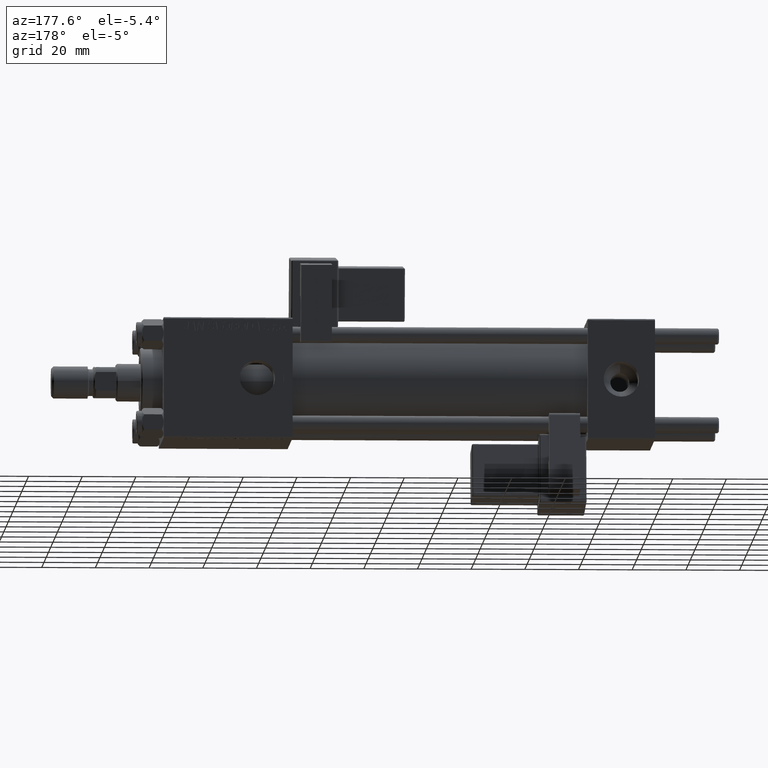
[diagram: clean part render]
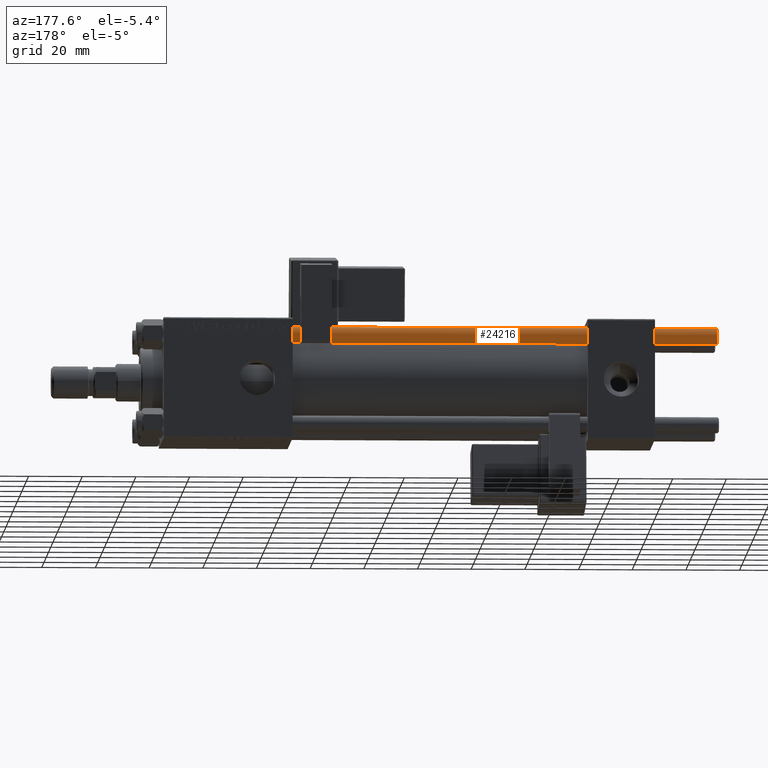
[diagram: same view with one face highlighted and labeled with its STEP entity id]
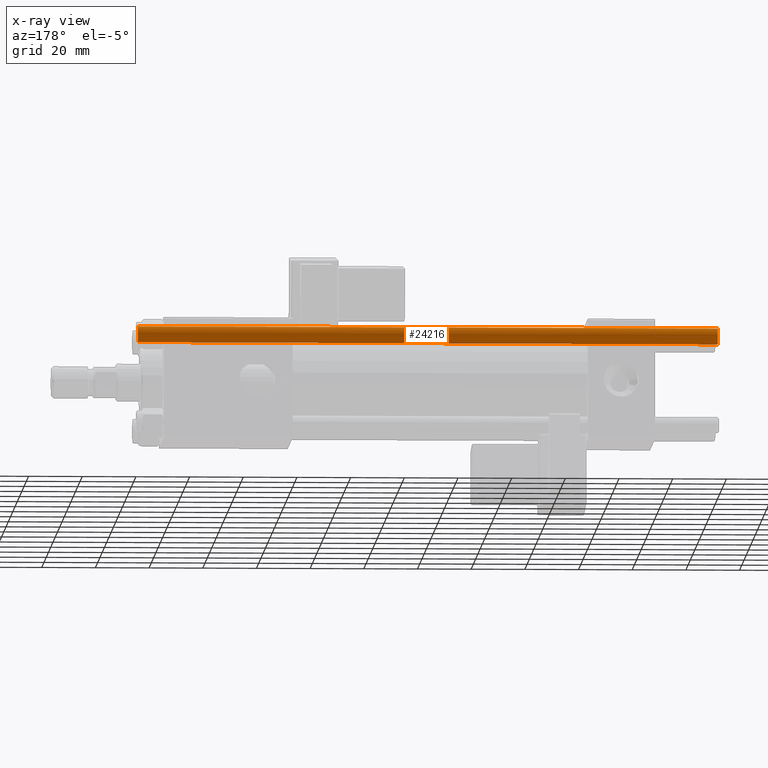
[diagram: x-ray of the same camera — body ghosted, the highlighted face saturated]
A machine part, auxiliary view. The second image highlights one B-rep face of the part: STEP entity #24216.
The next image is the same camera in x-ray: the body ghosted, the highlighted face saturated — about 0% of this face is hidden behind the body in this view.
In plain terms, the highlighted cylindrical surface (edge-blend (fillet) strip) has radius 3 mm, axis along (-1, -0, -0).
Its self-contained STEP definition (entity closure, byte-faithful):
#2593 = AXIS2_PLACEMENT_3D ( 'NONE', #15445, #52775, #36560 ) ;
#3257 = LINE ( 'NONE', #39738, #4532 ) ;
#4138 = ORIENTED_EDGE ( 'NONE', *, *, #19856, .T. ) ;
#4329 = CARTESIAN_POINT ( 'NONE',  ( -3.000000000000000444, 0.000000000000000000, 0.5000000000000559552 ) ) ;
#4532 = VECTOR ( 'NONE', #18889, 1000.000000000000000 ) ;
#5206 = CIRCLE ( 'NONE', #2593, 3.000000000000000444 ) ;
#8696 = CARTESIAN_POINT ( 'NONE',  ( -3.000000000000000444, 0.000000000000000000, 217.0000000000000000 ) ) ;
#11612 = CARTESIAN_POINT ( 'NONE',  ( 3.000000000000000444, 3.673940397442060361E-16, 216.5000000000000000 ) ) ;
#12045 = VECTOR ( 'NONE', #38301, 1000.000000000000000 ) ;
#13312 = VERTEX_POINT ( 'NONE', #4329 ) ;
#15445 = CARTESIAN_POINT ( 'NONE',  ( 0.000000000000000000, 0.000000000000000000, 216.5000000000000000 ) ) ;
#15448 = DIRECTION ( 'NONE',  ( 1.000000000000000000, 0.000000000000000000, 0.000000000000000000 ) ) ;
#16420 = FACE_OUTER_BOUND ( 'NONE', #43126, .T. ) ;
#16686 = DIRECTION ( 'NONE',  ( -0.000000000000000000, -0.000000000000000000, -1.000000000000000000 ) ) ;
#16958 = ORIENTED_EDGE ( 'NONE', *, *, #52588, .T. ) ;
#18889 = DIRECTION ( 'NONE',  ( -0.000000000000000000, -0.000000000000000000, -1.000000000000000000 ) ) ;
#19856 = EDGE_CURVE ( 'NONE', #26679, #26513, #5206, .T. ) ;
#21575 = LINE ( 'NONE', #8696, #12045 ) ;
#24216 = ADVANCED_FACE ( 'NONE', ( #16420 ), #38067, .T. ) ;
#26513 = VERTEX_POINT ( 'NONE', #11612 ) ;
#26679 = VERTEX_POINT ( 'NONE', #40073 ) ;
#28119 = AXIS2_PLACEMENT_3D ( 'NONE', #50437, #16686, #37802 ) ;
#28708 = EDGE_CURVE ( 'NONE', #26513, #35511, #3257, .T. ) ;
#33189 = CIRCLE ( 'NONE', #53374, 3.000000000000000444 ) ;
#35511 = VERTEX_POINT ( 'NONE', #43743 ) ;
#36560 = DIRECTION ( 'NONE',  ( 1.000000000000000000, 0.000000000000000000, 0.000000000000000000 ) ) ;
#37802 = DIRECTION ( 'NONE',  ( -1.000000000000000000, 0.000000000000000000, 0.000000000000000000 ) ) ;
#38067 = CYLINDRICAL_SURFACE ( 'NONE', #28119, 3.000000000000000444 ) ;
#38301 = DIRECTION ( 'NONE',  ( -0.000000000000000000, -0.000000000000000000, -1.000000000000000000 ) ) ;
#39738 = CARTESIAN_POINT ( 'NONE',  ( 3.000000000000000444, 3.673940397442060361E-16, 217.0000000000000000 ) ) ;
#40073 = CARTESIAN_POINT ( 'NONE',  ( -3.000000000000000444, 0.000000000000000000, 216.5000000000000000 ) ) ;
#40671 = CARTESIAN_POINT ( 'NONE',  ( 0.000000000000000000, 0.000000000000000000, 0.5000000000000559552 ) ) ;
#43126 = EDGE_LOOP ( 'NONE', ( #4138, #54096, #16958, #46201 ) ) ;
#43743 = CARTESIAN_POINT ( 'NONE',  ( 3.000000000000000444, 3.673940397442060361E-16, 0.5000000000000559552 ) ) ;
#46201 = ORIENTED_EDGE ( 'NONE', *, *, #49819, .F. ) ;
#48650 = DIRECTION ( 'NONE',  ( -0.000000000000000000, -0.000000000000000000, 1.000000000000000000 ) ) ;
#49819 = EDGE_CURVE ( 'NONE', #26679, #13312, #21575, .T. ) ;
#50437 = CARTESIAN_POINT ( 'NONE',  ( 0.000000000000000000, 0.000000000000000000, 217.0000000000000000 ) ) ;
#52588 = EDGE_CURVE ( 'NONE', #35511, #13312, #33189, .T. ) ;
#52775 = DIRECTION ( 'NONE',  ( 0.000000000000000000, 0.000000000000000000, -1.000000000000000000 ) ) ;
#53374 = AXIS2_PLACEMENT_3D ( 'NONE', #40671, #48650, #15448 ) ;
#54096 = ORIENTED_EDGE ( 'NONE', *, *, #28708, .T. ) ;